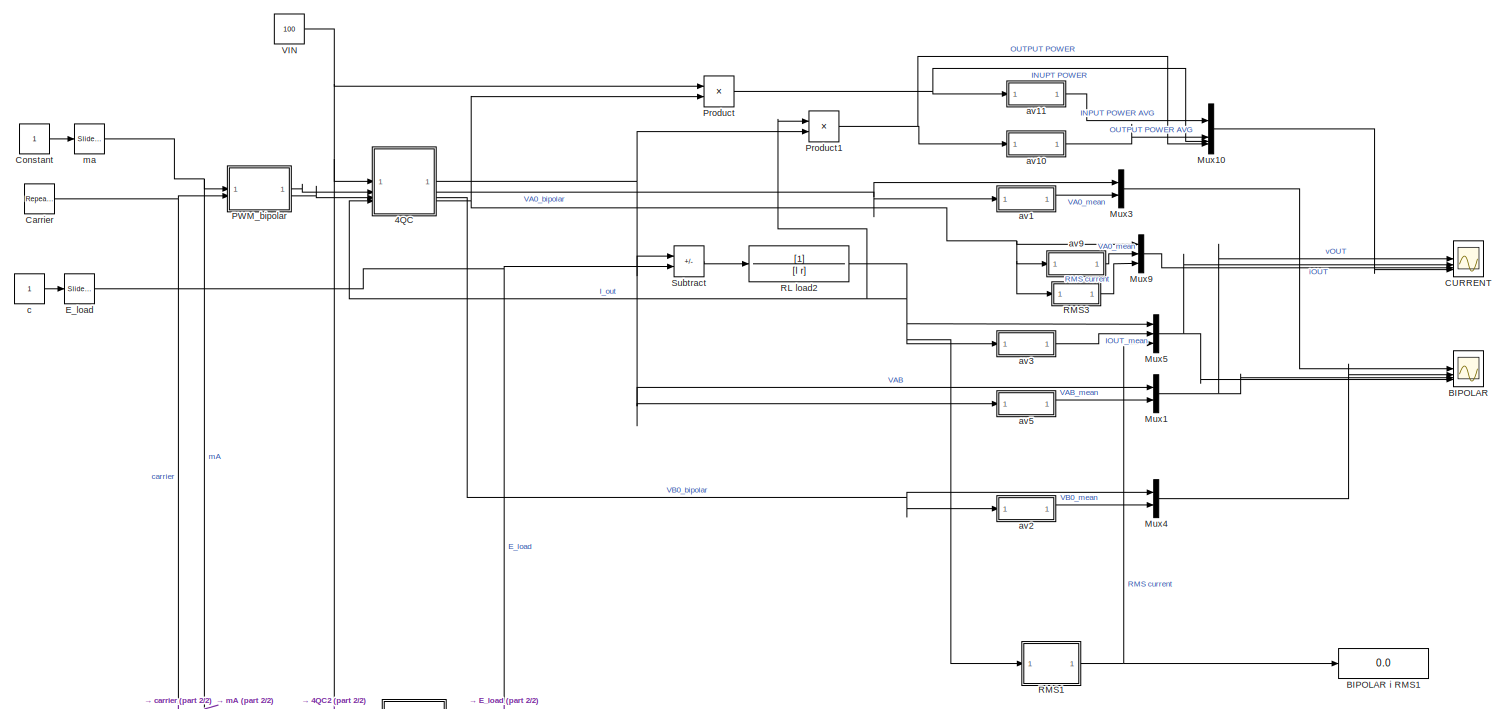
[diagram: root canvas - part 1/2, full width, top band]
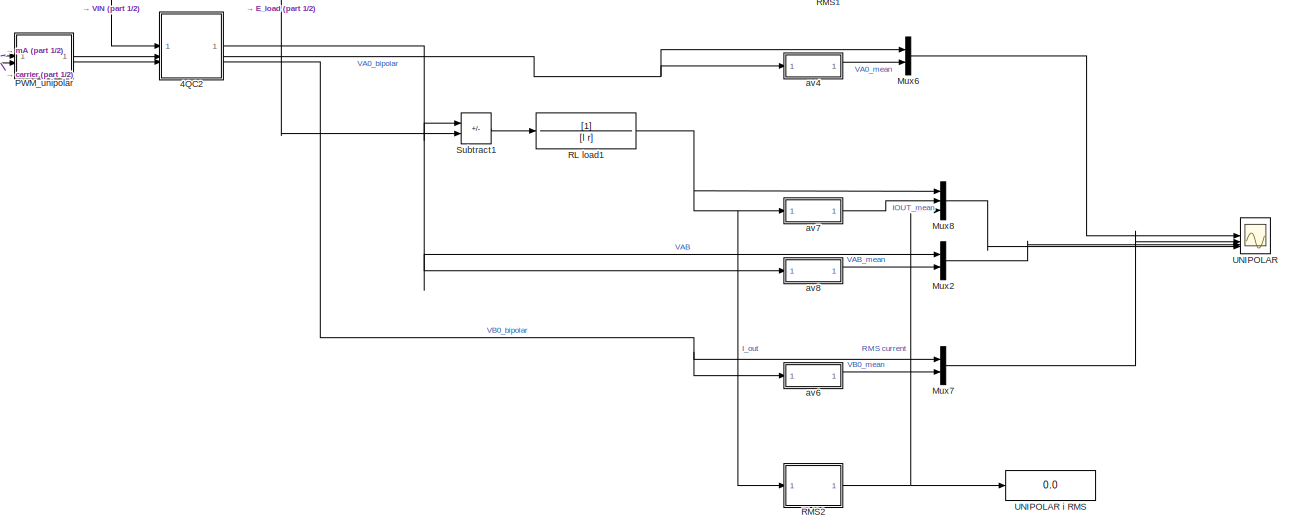
[diagram: root canvas - part 2/2, full width, bottom band]
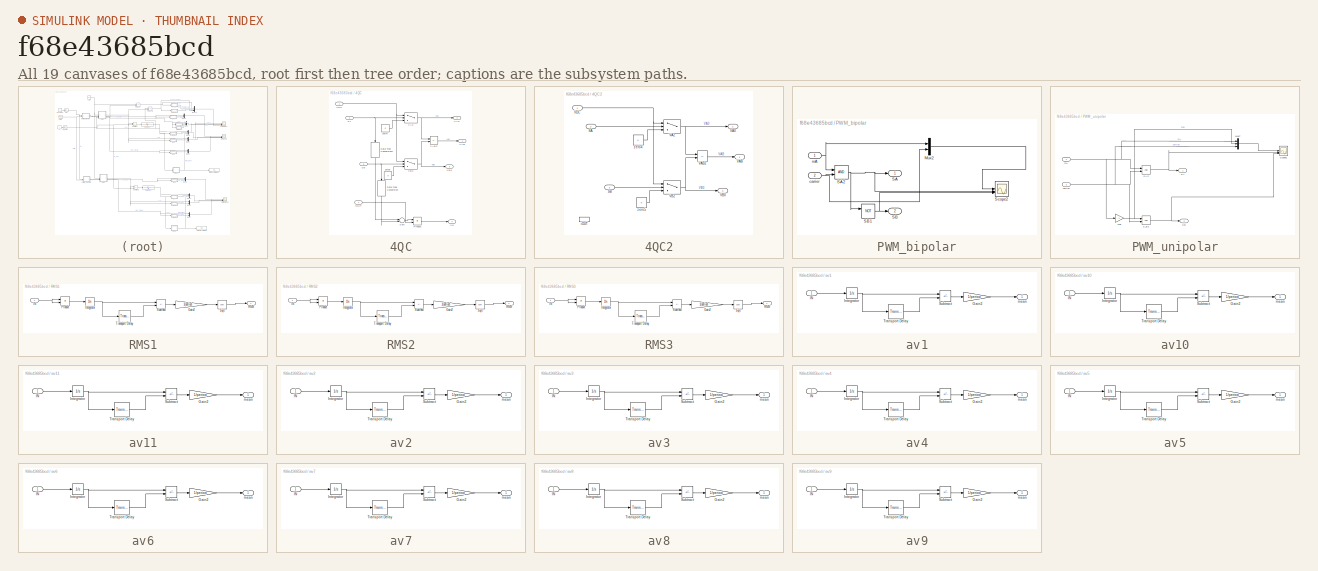
[diagram: thumbnail index - all 19 canvases of the model, root first then tree order]
MODEL slx_f68e43685bcd
KIND model
CONFIG AbsTol = auto
CONFIG EnableMultiTasking = off
CONFIG FixedStep = auto
CONFIG MaxStep = 1e-6
CONFIG MinStep = auto
CONFIG RelTol = 1e-3
CONFIG SampleTimeConstraint = Unconstrained
CONFIG SolverName = VariableStepAuto
CONFIG StartTime = 0.0
CONFIG StopTime = inf
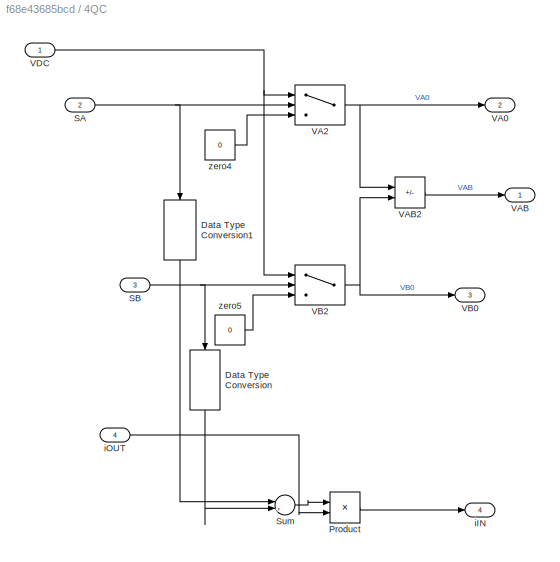
BLOCK [SubSystem] 4QC
BLOCK [DataTypeConversion] 4QC/Data Type Conversion
  NameLocation = left
  RndMeth = Floor
  SaturateOnIntegerOverflow = off
BLOCK [DataTypeConversion] 4QC/Data Type Conversion1
  NameLocation = left
  RndMeth = Floor
  SaturateOnIntegerOverflow = off
BLOCK [Product] 4QC/Product
BLOCK [Inport] 4QC/SA
  Port = 2
BLOCK [Inport] 4QC/SB
  Port = 3
BLOCK [Sum] 4QC/Sum
  Inputs = |+-
BLOCK [Outport] 4QC/VA0
  Port = 2
BLOCK [Switch] 4QC/VA2
  Criteria = u2 > Threshold
  InputSameDT = off
  SaturateOnIntegerOverflow = off
BLOCK [Outport] 4QC/VAB
BLOCK [Sum] 4QC/VAB2
  IconShape = rectangular
  Inputs = +-
BLOCK [Outport] 4QC/VB0
  Port = 3
BLOCK [Switch] 4QC/VB2
  Criteria = u2 > Threshold
  InputSameDT = off
  SaturateOnIntegerOverflow = off
BLOCK [Inport] 4QC/VDC
BLOCK [Outport] 4QC/iIN
  Port = 4
BLOCK [Inport] 4QC/iOUT
  Port = 4
BLOCK [Constant] 4QC/zero4
  Value = 0
BLOCK [Constant] 4QC/zero5
  Value = 0
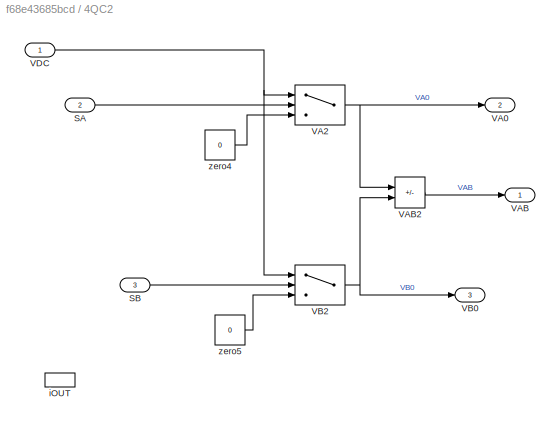
BLOCK [SubSystem] 4QC2
BLOCK [Inport] 4QC2/SA
  Port = 2
BLOCK [Inport] 4QC2/SB
  Port = 3
BLOCK [Outport] 4QC2/VA0
  Port = 2
BLOCK [Switch] 4QC2/VA2
  Criteria = u2 > Threshold
  InputSameDT = off
  SaturateOnIntegerOverflow = off
BLOCK [Outport] 4QC2/VAB
BLOCK [Sum] 4QC2/VAB2
  IconShape = rectangular
  Inputs = +-
BLOCK [Outport] 4QC2/VB0
  Port = 3
BLOCK [Switch] 4QC2/VB2
  Criteria = u2 > Threshold
  InputSameDT = off
  SaturateOnIntegerOverflow = off
BLOCK [Inport] 4QC2/VDC
BLOCK [InportShadow] 4QC2/iOUT
  Port = 3
BLOCK [Constant] 4QC2/zero4
  Value = 0
BLOCK [Constant] 4QC2/zero5
  Value = 0
BLOCK [Scope] BIPOLAR
  Floating = off
  NumInputPorts = 4
  ScopeSpecificationString = Simulink.scopes.TimeScopeBlockCfg('CurrentConfiguration', extmgr.ConfigurationSet(extmgr.Configuration('Core','General UI',true),extmgr.Configuration('Core','Source UI',true),extmgr.Configuration('Sources','WiredSimulink',true,'DataLoggingVariableName','ScopeData1'),extmgr.Configuration('Visuals','Time Domain',true,'SerializedDisplays',{struct('MinYLimReal','-12.5','MaxYLimReal','112.5','YLabelRea...<+5584ch>
BLOCK [Display] BIPOLAR i RMS1
  Decimation = 1
BLOCK [Scope] CURRENT
  Floating = off
  NumInputPorts = 4
  ScopeSpecificationString = Simulink.scopes.TimeScopeBlockCfg('CurrentConfiguration', extmgr.ConfigurationSet(extmgr.Configuration('Core','General UI',true),extmgr.Configuration('Core','Source UI',true),extmgr.Configuration('Sources','WiredSimulink',true,'DataLoggingVariableName','ScopeData4'),extmgr.Configuration('Visuals','Time Domain',true,'SerializedDisplays',{struct('MinYLimReal','-125.00000','MaxYLimReal','125.00000','...<+5656ch>
BLOCK [Reference] Carrier   REF=simulink/Sources/Repeating
Sequence
  SourceBlock = simulink/Sources/Repeating\nSequence
  SourceType = Repeating table
BLOCK [Constant] Constant
BLOCK [Reference] E_load  REF=simulink/Math
Operations/Slider
Gain
  SourceBlock = simulink/Math\nOperations/Slider\nGain
  SourceType = Slider Gain
BLOCK [Mux] Mux1
  DisplayOption = bar
  Inputs = 2
BLOCK [Mux] Mux10
  DisplayOption = bar
BLOCK [Mux] Mux2
  DisplayOption = bar
  Inputs = 2
BLOCK [Mux] Mux3
  DisplayOption = bar
  Inputs = 2
BLOCK [Mux] Mux4
  DisplayOption = bar
  Inputs = 2
BLOCK [Mux] Mux5
  DisplayOption = bar
  Inputs = 3
BLOCK [Mux] Mux6
  DisplayOption = bar
  Inputs = 2
BLOCK [Mux] Mux7
  DisplayOption = bar
  Inputs = 2
BLOCK [Mux] Mux8
  DisplayOption = bar
  Inputs = 3
BLOCK [Mux] Mux9
  DisplayOption = bar
  Inputs = 3
BLOCK [SubSystem] PWM_bipolar
BLOCK [Mux] PWM_bipolar/Mux2
  DisplayOption = bar
  Inputs = 2
BLOCK [Outport] PWM_bipolar/SA
BLOCK [RelationalOperator] PWM_bipolar/SA2
  InputSameDT = off
  OutDataTypeStr = boolean
  RndMeth = Simplest
BLOCK [Outport] PWM_bipolar/SB
  Port = 2
BLOCK [Logic] PWM_bipolar/SB1
  AllPortsSameDT = off
  Operator = NOT
  OutDataTypeStr = boolean
BLOCK [Scope] PWM_bipolar/Scope2
  Floating = off
  NumInputPorts = 3
  ScopeSpecificationString = Simulink.scopes.TimeScopeBlockCfg('CurrentConfiguration', extmgr.ConfigurationSet(extmgr.Configuration('Core','General UI',true),extmgr.Configuration('Core','Source UI',true),extmgr.Configuration('Sources','WiredSimulink',true,'DataLoggingVariableName','ScopeData1'),extmgr.Configuration('Visuals','Time Domain',true,'SerializedDisplays',{struct('MinYLimReal','-1.24768','MaxYLimReal','1.22912','YLab...<+3173ch>
BLOCK [Inport] PWM_bipolar/carrier
  Port = 2
BLOCK [Inport] PWM_bipolar/mA
BLOCK [SubSystem] PWM_unipolar
BLOCK [Mux] PWM_unipolar/Mux7
  DisplayOption = bar
  Inputs = 3
BLOCK [Outport] PWM_unipolar/SA
BLOCK [RelationalOperator] PWM_unipolar/SA2
  InputSameDT = off
  OutDataTypeStr = boolean
  RndMeth = Simplest
BLOCK [Outport] PWM_unipolar/SB
  Port = 2
BLOCK [RelationalOperator] PWM_unipolar/S_B1
  InputSameDT = off
  OutDataTypeStr = boolean
  RndMeth = Simplest
BLOCK [Scope] PWM_unipolar/Scope1
  Floating = off
  NumInputPorts = 3
  ScopeSpecificationString = Simulink.scopes.TimeScopeBlockCfg('CurrentConfiguration', extmgr.ConfigurationSet(extmgr.Configuration('Core','General UI',true),extmgr.Configuration('Core','Source UI',true),extmgr.Configuration('Sources','WiredSimulink',true,'DataLoggingVariableName','ScopeData2'),extmgr.Configuration('Visuals','Time Domain',true,'SerializedDisplays',{struct('MinYLimReal','-1.24768','MaxYLimReal','1.22912','YLab...<+3313ch>
BLOCK [Inport] PWM_unipolar/carrier
  Port = 2
BLOCK [Inport] PWM_unipolar/mA
BLOCK [Gain] PWM_unipolar/mB
  Gain = -1
BLOCK [Product] Product
BLOCK [Product] Product1
BLOCK [TransferFcn] RL load1
  Denominator = [l r]
BLOCK [TransferFcn] RL load2
  Denominator = [l r]
BLOCK [SubSystem] RMS1
BLOCK [Gain] RMS1/Gain2
  Gain = 1/period
BLOCK [Inport] RMS1/IN
BLOCK [Integrator] RMS1/Integrator
BLOCK [Product] RMS1/Product
BLOCK [Outport] RMS1/RMS
BLOCK [Sqrt] RMS1/Sqrt
BLOCK [Sum] RMS1/Subtract
  IconShape = rectangular
  Inputs = +-
BLOCK [TransportDelay] RMS1/Transport Delay
  DelayTime = period
BLOCK [SubSystem] RMS2
BLOCK [Gain] RMS2/Gain2
  Gain = 1/period
BLOCK [Inport] RMS2/IN
BLOCK [Integrator] RMS2/Integrator
BLOCK [Product] RMS2/Product
BLOCK [Outport] RMS2/RMS
BLOCK [Sqrt] RMS2/Sqrt
BLOCK [Sum] RMS2/Subtract
  IconShape = rectangular
  Inputs = +-
BLOCK [TransportDelay] RMS2/Transport Delay
  DelayTime = period
BLOCK [SubSystem] RMS3
BLOCK [Gain] RMS3/Gain2
  Gain = 1/period
BLOCK [Inport] RMS3/IN
BLOCK [Integrator] RMS3/Integrator
BLOCK [Product] RMS3/Product
BLOCK [Outport] RMS3/RMS
BLOCK [Sqrt] RMS3/Sqrt
BLOCK [Sum] RMS3/Subtract
  IconShape = rectangular
  Inputs = +-
BLOCK [TransportDelay] RMS3/Transport Delay
  DelayTime = period
BLOCK [Sum] Subtract
  IconShape = rectangular
  Inputs = +-
BLOCK [Sum] Subtract1
  IconShape = rectangular
  Inputs = +-
BLOCK [Scope] UNIPOLAR
  Floating = off
  NumInputPorts = 4
  ScopeSpecificationString = Simulink.scopes.TimeScopeBlockCfg('CurrentConfiguration', extmgr.ConfigurationSet(extmgr.Configuration('Core','General UI',true),extmgr.Configuration('Core','Source UI',true),extmgr.Configuration('Sources','WiredSimulink',true,'DataLoggingVariableName','ScopeData3'),extmgr.Configuration('Visuals','Time Domain',true,'SerializedDisplays',{struct('MinYLimReal','-12.5','MaxYLimReal','112.5','YLabelRea...<+5560ch>
BLOCK [Display] UNIPOLAR i RMS
  Decimation = 1
BLOCK [Constant] VIN
  Value = 100
BLOCK [SubSystem] av1
BLOCK [Gain] av1/Gain2
  Gain = 1/period
BLOCK [Inport] av1/IN
BLOCK [Integrator] av1/Integrator
BLOCK [Sum] av1/Subtract
  IconShape = rectangular
  Inputs = +-
BLOCK [TransportDelay] av1/Transport Delay
  DelayTime = period
BLOCK [Outport] av1/mean
BLOCK [SubSystem] av10
BLOCK [Gain] av10/Gain2
  Gain = 1/period
BLOCK [Inport] av10/IN
BLOCK [Integrator] av10/Integrator
BLOCK [Sum] av10/Subtract
  IconShape = rectangular
  Inputs = +-
BLOCK [TransportDelay] av10/Transport Delay
  DelayTime = period
BLOCK [Outport] av10/mean
BLOCK [SubSystem] av11
BLOCK [Gain] av11/Gain2
  Gain = 1/period
BLOCK [Inport] av11/IN
BLOCK [Integrator] av11/Integrator
BLOCK [Sum] av11/Subtract
  IconShape = rectangular
  Inputs = +-
BLOCK [TransportDelay] av11/Transport Delay
  DelayTime = period
BLOCK [Outport] av11/mean
BLOCK [SubSystem] av2
BLOCK [Gain] av2/Gain2
  Gain = 1/period
BLOCK [Inport] av2/IN
BLOCK [Integrator] av2/Integrator
BLOCK [Sum] av2/Subtract
  IconShape = rectangular
  Inputs = +-
BLOCK [TransportDelay] av2/Transport Delay
  DelayTime = period
BLOCK [Outport] av2/mean
BLOCK [SubSystem] av3
BLOCK [Gain] av3/Gain2
  Gain = 1/period
BLOCK [Inport] av3/IN
BLOCK [Integrator] av3/Integrator
BLOCK [Sum] av3/Subtract
  IconShape = rectangular
  Inputs = +-
BLOCK [TransportDelay] av3/Transport Delay
  DelayTime = period
BLOCK [Outport] av3/mean
BLOCK [SubSystem] av4
BLOCK [Gain] av4/Gain2
  Gain = 1/period
BLOCK [Inport] av4/IN
BLOCK [Integrator] av4/Integrator
BLOCK [Sum] av4/Subtract
  IconShape = rectangular
  Inputs = +-
BLOCK [TransportDelay] av4/Transport Delay
  DelayTime = period
BLOCK [Outport] av4/mean
BLOCK [SubSystem] av5
BLOCK [Gain] av5/Gain2
  Gain = 1/period
BLOCK [Inport] av5/IN
BLOCK [Integrator] av5/Integrator
BLOCK [Sum] av5/Subtract
  IconShape = rectangular
  Inputs = +-
BLOCK [TransportDelay] av5/Transport Delay
  DelayTime = period
BLOCK [Outport] av5/mean
BLOCK [SubSystem] av6
BLOCK [Gain] av6/Gain2
  Gain = 1/period
BLOCK [Inport] av6/IN
BLOCK [Integrator] av6/Integrator
BLOCK [Sum] av6/Subtract
  IconShape = rectangular
  Inputs = +-
BLOCK [TransportDelay] av6/Transport Delay
  DelayTime = period
BLOCK [Outport] av6/mean
BLOCK [SubSystem] av7
BLOCK [Gain] av7/Gain2
  Gain = 1/period
BLOCK [Inport] av7/IN
BLOCK [Integrator] av7/Integrator
BLOCK [Sum] av7/Subtract
  IconShape = rectangular
  Inputs = +-
BLOCK [TransportDelay] av7/Transport Delay
  DelayTime = period
BLOCK [Outport] av7/mean
BLOCK [SubSystem] av8
BLOCK [Gain] av8/Gain2
  Gain = 1/period
BLOCK [Inport] av8/IN
BLOCK [Integrator] av8/Integrator
BLOCK [Sum] av8/Subtract
  IconShape = rectangular
  Inputs = +-
BLOCK [TransportDelay] av8/Transport Delay
  DelayTime = period
BLOCK [Outport] av8/mean
BLOCK [SubSystem] av9
BLOCK [Gain] av9/Gain2
  Gain = 1/period
BLOCK [Inport] av9/IN
BLOCK [Integrator] av9/Integrator
BLOCK [Sum] av9/Subtract
  IconShape = rectangular
  Inputs = +-
BLOCK [TransportDelay] av9/Transport Delay
  DelayTime = period
BLOCK [Outport] av9/mean
BLOCK [Constant] c
BLOCK [Reference] ma  REF=simulink/Math
Operations/Slider
Gain
  SourceBlock = simulink/Math\nOperations/Slider\nGain
  SourceType = Slider Gain
LINE 4QC/Data Type Conversion1:1 -> 4QC/Sum:1
LINE 4QC/Data Type Conversion:1 -> 4QC/Sum:2
LINE 4QC/Product:1 -> 4QC/iIN:1
NET 4QC/SA:1 -> 4QC/Data Type Conversion1:1, 4QC/VA2:2
NET 4QC/SB:1 -> 4QC/Data Type Conversion:1, 4QC/VB2:2
LINE 4QC/Sum:1 -> 4QC/Product:1
NET 4QC/VA2:1 -> 4QC/VA0:1, 4QC/VAB2:1
LINE 4QC/VAB2:1 -> 4QC/VAB:1
NET 4QC/VB2:1 -> 4QC/VAB2:2, 4QC/VB0:1
NET 4QC/VDC:1 -> 4QC/VA2:1, 4QC/VB2:1
LINE 4QC/iOUT:1 -> 4QC/Product:2
LINE 4QC/zero4:1 -> 4QC/VA2:3
LINE 4QC/zero5:1 -> 4QC/VB2:3
LINE 4QC2/SA:1 -> 4QC2/VA2:2
LINE 4QC2/SB:1 -> 4QC2/VB2:2
NET 4QC2/VA2:1 -> 4QC2/VA0:1, 4QC2/VAB2:1
LINE 4QC2/VAB2:1 -> 4QC2/VAB:1
NET 4QC2/VB2:1 -> 4QC2/VAB2:2, 4QC2/VB0:1
NET 4QC2/VDC:1 -> 4QC2/VA2:1, 4QC2/VB2:1
LINE 4QC2/zero4:1 -> 4QC2/VA2:3
LINE 4QC2/zero5:1 -> 4QC2/VB2:3
NET 4QC2:1 -> Mux2:1, Subtract1:1, av8:1
NET 4QC2:2 -> Mux6:1, av4:1
NET 4QC2:3 -> Mux7:1, av6:1
NET 4QC:1 -> Mux1:1, Product1:2, Subtract:1, av5:1
NET 4QC:2 -> Mux3:1, av1:1
NET 4QC:3 -> Mux4:1, av2:1
NET 4QC:4 -> Mux9:1, Product:2, RMS3:1, av9:1
NET Carrier :1 -> PWM_bipolar:2, PWM_unipolar:2
LINE Constant:1 -> ma:1
NET E_load:1 -> Subtract1:2, Subtract:2
LINE Mux10:1 -> CURRENT:4
NET Mux1:1 -> BIPOLAR:3, CURRENT:1
LINE Mux2:1 -> UNIPOLAR:3
LINE Mux3:1 -> BIPOLAR:1
LINE Mux4:1 -> BIPOLAR:2
NET Mux5:1 -> BIPOLAR:4, CURRENT:2
LINE Mux6:1 -> UNIPOLAR:1
LINE Mux7:1 -> UNIPOLAR:2
LINE Mux8:1 -> UNIPOLAR:4
LINE Mux9:1 -> CURRENT:3
LINE PWM_bipolar/Mux2:1 -> PWM_bipolar/Scope2:1
NET PWM_bipolar/SA2:1 -> PWM_bipolar/SA:1, PWM_bipolar/SB1:1, PWM_bipolar/Scope2:2
NET PWM_bipolar/SB1:1 -> PWM_bipolar/SB:1, PWM_bipolar/Scope2:3
NET PWM_bipolar/carrier:1 -> PWM_bipolar/Mux2:2, PWM_bipolar/SA2:2
NET PWM_bipolar/mA:1 -> PWM_bipolar/Mux2:1, PWM_bipolar/SA2:1
LINE PWM_bipolar:1 -> 4QC:2
LINE PWM_bipolar:2 -> 4QC:3
LINE PWM_unipolar/Mux7:1 -> PWM_unipolar/Scope1:1
NET PWM_unipolar/SA2:1 -> PWM_unipolar/SA:1, PWM_unipolar/Scope1:2
NET PWM_unipolar/S_B1:1 -> PWM_unipolar/SB:1, PWM_unipolar/Scope1:3
NET PWM_unipolar/carrier:1 -> PWM_unipolar/Mux7:3, PWM_unipolar/SA2:2, PWM_unipolar/S_B1:2
NET PWM_unipolar/mA:1 -> PWM_unipolar/Mux7:1, PWM_unipolar/SA2:1, PWM_unipolar/mB:1
NET PWM_unipolar/mB:1 -> PWM_unipolar/Mux7:2, PWM_unipolar/S_B1:1
LINE PWM_unipolar:1 -> 4QC2:2
LINE PWM_unipolar:2 -> 4QC2:3
NET Product1:1 -> Mux10:4, av10:1
NET Product:1 -> Mux10:3, av11:1
NET RL load1:1 -> Mux8:1, RMS2:1, av7:1
NET RL load2:1 -> 4QC:4, Mux5:1, Product1:1, RMS1:1, av3:1
LINE RMS1/Gain2:1 -> RMS1/Sqrt:1
NET RMS1/IN:1 -> RMS1/Product:1, RMS1/Product:2
NET RMS1/Integrator:1 -> RMS1/Subtract:1, RMS1/Transport Delay:1
LINE RMS1/Product:1 -> RMS1/Integrator:1
LINE RMS1/Sqrt:1 -> RMS1/RMS:1
LINE RMS1/Subtract:1 -> RMS1/Gain2:1
LINE RMS1/Transport Delay:1 -> RMS1/Subtract:2
NET RMS1:1 -> BIPOLAR i RMS1:1, Mux5:3
LINE RMS2/Gain2:1 -> RMS2/Sqrt:1
NET RMS2/IN:1 -> RMS2/Product:1, RMS2/Product:2
NET RMS2/Integrator:1 -> RMS2/Subtract:1, RMS2/Transport Delay:1
LINE RMS2/Product:1 -> RMS2/Integrator:1
LINE RMS2/Sqrt:1 -> RMS2/RMS:1
LINE RMS2/Subtract:1 -> RMS2/Gain2:1
LINE RMS2/Transport Delay:1 -> RMS2/Subtract:2
NET RMS2:1 -> Mux8:3, UNIPOLAR i RMS:1
LINE RMS3/Gain2:1 -> RMS3/Sqrt:1
NET RMS3/IN:1 -> RMS3/Product:1, RMS3/Product:2
NET RMS3/Integrator:1 -> RMS3/Subtract:1, RMS3/Transport Delay:1
LINE RMS3/Product:1 -> RMS3/Integrator:1
LINE RMS3/Sqrt:1 -> RMS3/RMS:1
LINE RMS3/Subtract:1 -> RMS3/Gain2:1
LINE RMS3/Transport Delay:1 -> RMS3/Subtract:2
LINE RMS3:1 -> Mux9:3
LINE Subtract1:1 -> RL load1:1
LINE Subtract:1 -> RL load2:1
NET VIN:1 -> 4QC2:1, 4QC:1, Product:1
LINE av1/Gain2:1 -> av1/mean:1
LINE av1/IN:1 -> av1/Integrator:1
NET av1/Integrator:1 -> av1/Subtract:1, av1/Transport Delay:1
LINE av1/Subtract:1 -> av1/Gain2:1
LINE av1/Transport Delay:1 -> av1/Subtract:2
LINE av10/Gain2:1 -> av10/mean:1
LINE av10/IN:1 -> av10/Integrator:1
NET av10/Integrator:1 -> av10/Subtract:1, av10/Transport Delay:1
LINE av10/Subtract:1 -> av10/Gain2:1
LINE av10/Transport Delay:1 -> av10/Subtract:2
LINE av10:1 -> Mux10:2
LINE av11/Gain2:1 -> av11/mean:1
LINE av11/IN:1 -> av11/Integrator:1
NET av11/Integrator:1 -> av11/Subtract:1, av11/Transport Delay:1
LINE av11/Subtract:1 -> av11/Gain2:1
LINE av11/Transport Delay:1 -> av11/Subtract:2
LINE av11:1 -> Mux10:1
LINE av1:1 -> Mux3:2
LINE av2/Gain2:1 -> av2/mean:1
LINE av2/IN:1 -> av2/Integrator:1
NET av2/Integrator:1 -> av2/Subtract:1, av2/Transport Delay:1
LINE av2/Subtract:1 -> av2/Gain2:1
LINE av2/Transport Delay:1 -> av2/Subtract:2
LINE av2:1 -> Mux4:2
LINE av3/Gain2:1 -> av3/mean:1
LINE av3/IN:1 -> av3/Integrator:1
NET av3/Integrator:1 -> av3/Subtract:1, av3/Transport Delay:1
LINE av3/Subtract:1 -> av3/Gain2:1
LINE av3/Transport Delay:1 -> av3/Subtract:2
LINE av3:1 -> Mux5:2
LINE av4/Gain2:1 -> av4/mean:1
LINE av4/IN:1 -> av4/Integrator:1
NET av4/Integrator:1 -> av4/Subtract:1, av4/Transport Delay:1
LINE av4/Subtract:1 -> av4/Gain2:1
LINE av4/Transport Delay:1 -> av4/Subtract:2
LINE av4:1 -> Mux6:2
LINE av5/Gain2:1 -> av5/mean:1
LINE av5/IN:1 -> av5/Integrator:1
NET av5/Integrator:1 -> av5/Subtract:1, av5/Transport Delay:1
LINE av5/Subtract:1 -> av5/Gain2:1
LINE av5/Transport Delay:1 -> av5/Subtract:2
LINE av5:1 -> Mux1:2
LINE av6/Gain2:1 -> av6/mean:1
LINE av6/IN:1 -> av6/Integrator:1
NET av6/Integrator:1 -> av6/Subtract:1, av6/Transport Delay:1
LINE av6/Subtract:1 -> av6/Gain2:1
LINE av6/Transport Delay:1 -> av6/Subtract:2
LINE av6:1 -> Mux7:2
LINE av7/Gain2:1 -> av7/mean:1
LINE av7/IN:1 -> av7/Integrator:1
NET av7/Integrator:1 -> av7/Subtract:1, av7/Transport Delay:1
LINE av7/Subtract:1 -> av7/Gain2:1
LINE av7/Transport Delay:1 -> av7/Subtract:2
LINE av7:1 -> Mux8:2
LINE av8/Gain2:1 -> av8/mean:1
LINE av8/IN:1 -> av8/Integrator:1
NET av8/Integrator:1 -> av8/Subtract:1, av8/Transport Delay:1
LINE av8/Subtract:1 -> av8/Gain2:1
LINE av8/Transport Delay:1 -> av8/Subtract:2
LINE av8:1 -> Mux2:2
LINE av9/Gain2:1 -> av9/mean:1
LINE av9/IN:1 -> av9/Integrator:1
NET av9/Integrator:1 -> av9/Subtract:1, av9/Transport Delay:1
LINE av9/Subtract:1 -> av9/Gain2:1
LINE av9/Transport Delay:1 -> av9/Subtract:2
LINE av9:1 -> Mux9:2
LINE c:1 -> E_load:1
NET ma:1 -> PWM_bipolar:1, PWM_unipolar:1
note: NET lines group one-source signal fan-out (src -> all destinations, sorted); 1:1 wires keep LINE
